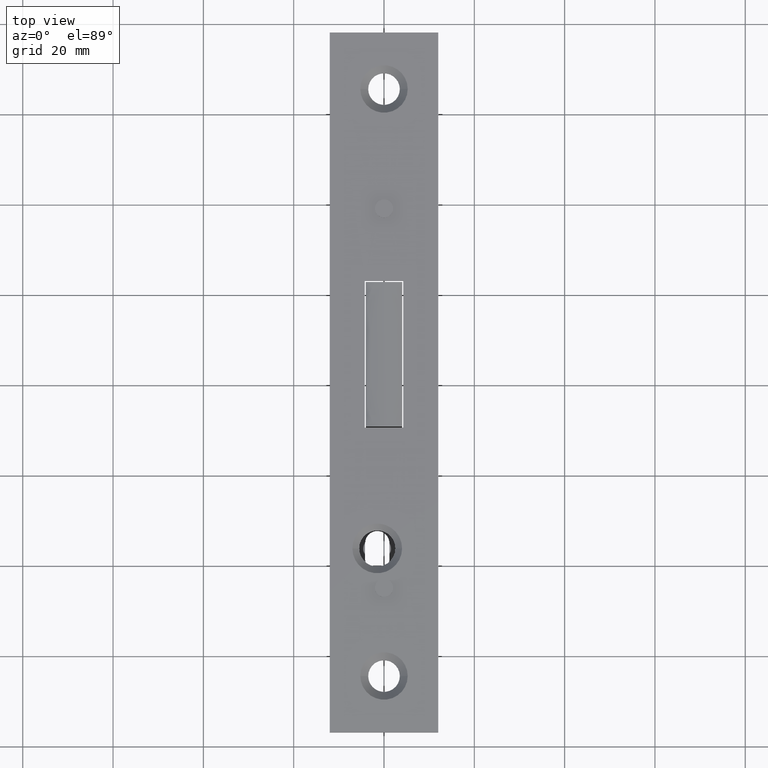
[diagram: clean part render]
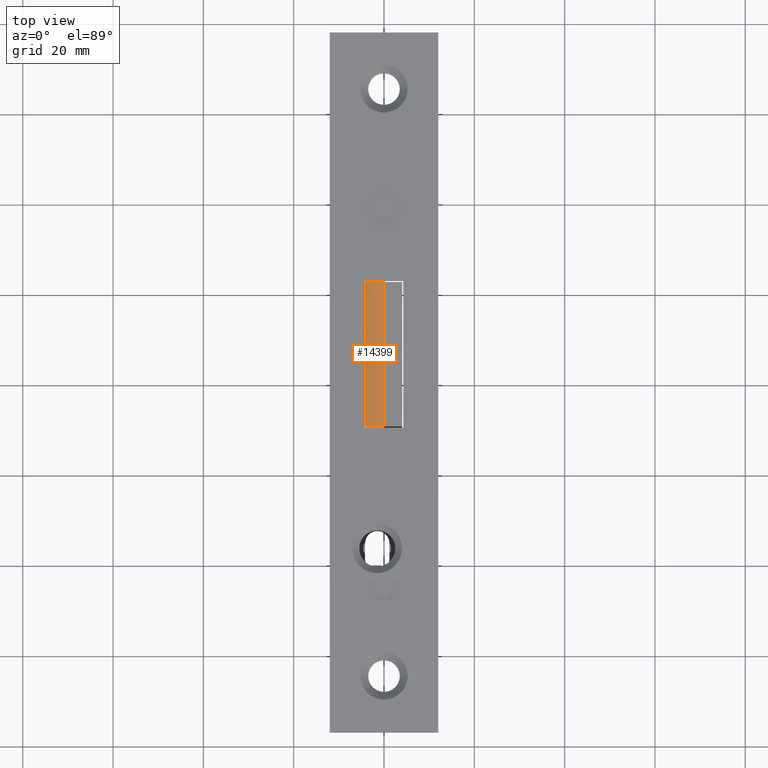
[diagram: same view with one face highlighted and labeled with its STEP entity id]
A machine part, top view. The second image highlights one B-rep face of the part: STEP entity #14399.
In plain terms, the highlighted face is a freeform B-spline surface patch.
Its self-contained STEP definition (entity closure, byte-faithful):
#373 = EDGE_CURVE ( 'NONE', #1470, #10816, #14894, .T. ) ;
#388 = CARTESIAN_POINT ( 'NONE',  ( -3.805268025144322497, -9.750000000000000000, 2.154113633260120064 ) ) ;
#578 = CARTESIAN_POINT ( 'NONE',  ( -3.936414049026728090, -9.750000000000000000, 2.103017513626503465 ) ) ;
#961 = CARTESIAN_POINT ( 'NONE',  ( -3.815235143575141930, 22.25000000000000711, 2.150212360375046927 ) ) ;
#1088 = CARTESIAN_POINT ( 'NONE',  ( -3.064886521503669137, 22.25000000000000355, 2.321289112144453881 ) ) ;
#1226 = CARTESIAN_POINT ( 'NONE',  ( -3.102910258523240650, 22.25000000000000000, 2.315548553909240415 ) ) ;
#1285 = CARTESIAN_POINT ( 'NONE',  ( -2.085934564569480454, 22.25000000000000355, 2.426636975059279333 ) ) ;
#1355 = CARTESIAN_POINT ( 'NONE',  ( -1.040834085586084257E-14, -9.750000000000001776, 2.499999999999998668 ) ) ;
#1470 = VERTEX_POINT ( 'NONE', #12046 ) ;
#1524 = CARTESIAN_POINT ( 'NONE',  ( -3.055638055408452569, -9.750000000000003553, 2.322663528806157895 ) ) ;
#1781 = B_SPLINE_CURVE_WITH_KNOTS ( 'NONE', 3,
 ( #16919, #10034, #5679, #11328 ),
 .UNSPECIFIED., .F., .F.,
 ( 4, 4 ),
 ( 0.000000000000000000, 1.000000000000000000 ),
 .UNSPECIFIED. ) ;
#1782 = CARTESIAN_POINT ( 'NONE',  ( -4.000000000000015099, 12.11666666666666003, 1.999999999999998668 ) ) ;
#1883 = CARTESIAN_POINT ( 'NONE',  ( -3.779538273247455393, -9.750000000000000000, 2.163754766783140493 ) ) ;
#1909 = CARTESIAN_POINT ( 'NONE',  ( -4.000000000000015099, -11.35000000000000320, 1.999999999999998668 ) ) ;
#2028 = CARTESIAN_POINT ( 'NONE',  ( -4.000000000000015099, 0.3833333333333379667, 1.999999999999998668 ) ) ;
#2139 =( BOUNDED_SURFACE ( )  B_SPLINE_SURFACE ( 2, 3, ( 
 ( #1909, #2028, #1782, #11690 ),
 ( #13238, #17387, #13039, #3366 ),
 ( #15990, #4637, #4819, #10338 ) ),
 .UNSPECIFIED., .F., .F., .T. ) 
 B_SPLINE_SURFACE_WITH_KNOTS ( ( 3, 3 ),
 ( 4, 4 ),
 ( 0.000000000000000000, 1.000000000000000000 ),
 ( -0.01135000000000000245, 0.02384999999999999967 ),
 .UNSPECIFIED. ) 
 GEOMETRIC_REPRESENTATION_ITEM ( )  RATIONAL_B_SPLINE_SURFACE ( (
 ( 1.000000000000000000, 1.000000000000000000, 1.000000000000000000, 1.000000000000000000),
 ( 0.7071067811865475727, 0.7071067811865475727, 0.7071067811865475727, 0.7071067811865475727),
 ( 1.000000000000000000, 1.000000000000000000, 1.000000000000000000, 1.000000000000000000) ) ) 
 REPRESENTATION_ITEM ( '' )  SURFACE ( )  );
#2382 = CARTESIAN_POINT ( 'NONE',  ( -4.000000000000015099, -9.750000000000001776, 1.999999999999998668 ) ) ;
#2567 = CARTESIAN_POINT ( 'NONE',  ( -2.055785642861360341, 22.25000000000000711, 2.428911811076549743 ) ) ;
#2929 = CARTESIAN_POINT ( 'NONE',  ( -2.010004234184923799, -9.750000000000003553, 2.432293316964329488 ) ) ;
#3364 = EDGE_CURVE ( 'NONE', #6618, #7219, #9241, .T. ) ;
#3366 = CARTESIAN_POINT ( 'NONE',  ( -4.000000000000015099, 23.85000000000000497, 2.499999999999998668 ) ) ;
#3819 = CARTESIAN_POINT ( 'NONE',  ( -1.040834085586084257E-14, 22.25000000000000000, 2.499999999999998668 ) ) ;
#3900 = CARTESIAN_POINT ( 'NONE',  ( -2.915411741200402584, 22.25000000000000000, 2.343498618526886457 ) ) ;
#3946 = ORIENTED_EDGE ( 'NONE', *, *, #373, .F. ) ;
#4028 = CARTESIAN_POINT ( 'NONE',  ( -1.414097314729632071, 22.25000000000000000, 2.476604814145217492 ) ) ;
#4372 = CARTESIAN_POINT ( 'NONE',  ( -3.547014129790579950, -9.750000000000003553, 2.231122433008331463 ) ) ;
#4545 = CARTESIAN_POINT ( 'NONE',  ( -1.975407552365148200, -9.750000000000003553, 2.434794408181292891 ) ) ;
#4637 = CARTESIAN_POINT ( 'NONE',  ( -1.474514954580286030E-14, 0.3833333333333379667, 2.499999999999998668 ) ) ;
#4750 = CARTESIAN_POINT ( 'NONE',  ( -3.905641309316480125, 22.25000000000000355, 2.109392735931169938 ) ) ;
#4819 = CARTESIAN_POINT ( 'NONE',  ( -1.474514954580286030E-14, 12.11666666666666003, 2.499999999999998668 ) ) ;
#4848 = FACE_OUTER_BOUND ( 'NONE', #12528, .T. ) ;
#4863 = CARTESIAN_POINT ( 'NONE',  ( -3.680167809476497354, -9.750000000000003553, 2.196718273185239489 ) ) ;
#5058 = ORIENTED_EDGE ( 'NONE', *, *, #10457, .T. ) ;
#5301 = CARTESIAN_POINT ( 'NONE',  ( -2.127858319363077566, 22.25000000000000000, 2.423410820697563750 ) ) ;
#5679 = CARTESIAN_POINT ( 'NONE',  ( -4.000000000000015099, 11.58333333333333748, 1.999999999999998668 ) ) ;
#5719 = CARTESIAN_POINT ( 'NONE',  ( -1.905951261702835353, -9.750000000000001776, 2.439676538236804415 ) ) ;
#5727 = CARTESIAN_POINT ( 'NONE',  ( -1.474514954580286030E-14, 11.58333333333332860, 2.499999999999998668 ) ) ;
#5779 = CARTESIAN_POINT ( 'NONE',  ( -2.510699081439635272, -9.750000000000003553, 2.391058909503678276 ) ) ;
#5890 = CARTESIAN_POINT ( 'NONE',  ( -0.8967534092441662441, -9.750000000000000000, 2.491219026035984552 ) ) ;
#5951 = CARTESIAN_POINT ( 'NONE',  ( -2.931938791052440152, -9.750000000000001776, 2.340261369920879631 ) ) ;
#6618 = VERTEX_POINT ( 'NONE', #8720 ) ;
#6652 = CARTESIAN_POINT ( 'NONE',  ( -3.566327799999990944, 22.25000000000000000, 2.226432043467901689 ) ) ;
#6714 = CARTESIAN_POINT ( 'NONE',  ( -2.067859567961302325, 22.25000000000000355, 2.428003963254727005 ) ) ;
#6776 = CARTESIAN_POINT ( 'NONE',  ( -3.072600407539296086, 22.25000000000000355, 2.320136465398820569 ) ) ;
#6837 = CARTESIAN_POINT ( 'NONE',  ( -2.679617665572388674, 22.25000000000000000, 2.373132526173304502 ) ) ;
#7130 = CARTESIAN_POINT ( 'NONE',  ( -3.533735632021147488, -9.750000000000003553, 2.234296663986737652 ) ) ;
#7182 = CARTESIAN_POINT ( 'NONE',  ( -3.558447725039629805, -9.750000000000001776, 2.228363752692272381 ) ) ;
#7219 = VERTEX_POINT ( 'NONE', #3819 ) ;
#7318 = CARTESIAN_POINT ( 'NONE',  ( -2.796816669906454056, -9.750000000000003553, 2.357982222329051414 ) ) ;
#7376 = CARTESIAN_POINT ( 'NONE',  ( -3.043541394457021099, -9.750000000000001776, 2.324443860045652954 ) ) ;
#7435 = CARTESIAN_POINT ( 'NONE',  ( -3.975908419399961868, 22.24999999999999289, 2.064930943048547629 ) ) ;
#8001 = CARTESIAN_POINT ( 'NONE',  ( -3.144666971412400702, 22.25000000000000000, 2.309071630293920485 ) ) ;
#8598 = CARTESIAN_POINT ( 'NONE',  ( -3.159877659180551301, -9.750000000000001776, 2.307170570181147351 ) ) ;
#8706 = CARTESIAN_POINT ( 'NONE',  ( -1.765986972287173939, -9.750000000000001776, 2.448960588834173002 ) ) ;
#8720 = CARTESIAN_POINT ( 'NONE',  ( -4.000000000000015099, 22.25000000000000000, 1.999999999999998668 ) ) ;
#8837 = CARTESIAN_POINT ( 'NONE',  ( -3.800923253462778817, -9.750000000000001776, 2.155772169430225649 ) ) ;
#8843 = CARTESIAN_POINT ( 'NONE',  ( -3.823014716477242558, 22.25000000000000000, 2.147087685976313054 ) ) ;
#9241 = B_SPLINE_CURVE_WITH_KNOTS ( 'NONE', 3,
 ( #17684, #17743, #7435, #4750, #10697, #17250, #8843, #961, #12170, #15919, #15071, #13595, #13778, #9476, #16455, #6652, #17984, #10951, #16394, #8001, #1226, #17867, #6776, #1088, #3900, #6837, #17810, #13717, #5301, #1285, #6714, #2567, #17927, #4028, #12359, #13843 ),
 .UNSPECIFIED., .F., .F.,
 ( 4, 1, 1, 1, 1, 2, 2, 1, 1, 1, 2, 2, 1, 1, 1, 1, 2, 2, 1, 1, 1, 1, 1, 2, 2, 4 ),
 ( 0.000000000000000000, 0.03125000000000057593, 0.04687500000000112410, 0.05468750000000139472, 0.05859375000000138778, 0.06054687500000132533, 0.06250000000000126288, 0.09375000000000088818, 0.1093750000000005135, 0.1171875000000003747, 0.1210937500000003331, 0.1250000000000002776, 0.1875000000000009437, 0.2187500000000010825, 0.2343750000000011657, 0.2421875000000012212, 0.2460937500000013600, 0.2500000000000014988, 0.3750000000000083822, 0.4375000000000118794, 0.4687500000000138223, 0.4843750000000149325, 0.4921875000000153211, 0.4960937500000154321, 0.5000000000000154321, 1.000000000000000000 ),
 .UNSPECIFIED. ) ;
#9476 = CARTESIAN_POINT ( 'NONE',  ( -3.586204991283282961, 22.25000000000000355, 2.221473635716480821 ) ) ;
#9902 = CARTESIAN_POINT ( 'NONE',  ( -0.3663938571635463881, -9.750000000000000000, 2.499999999999998224 ) ) ;
#9959 = CARTESIAN_POINT ( 'NONE',  ( -1.040834085586084257E-14, -9.750000000000001776, 2.499999999999998668 ) ) ;
#10016 = CARTESIAN_POINT ( 'NONE',  ( -3.502165305231602854, -9.750000000000001776, 2.241652690539723380 ) ) ;
#10034 = CARTESIAN_POINT ( 'NONE',  ( -4.000000000000015099, 0.9166666666666662966, 1.999999999999998668 ) ) ;
#10338 = CARTESIAN_POINT ( 'NONE',  ( -1.474514954580286030E-14, 23.85000000000000142, 2.499999999999998668 ) ) ;
#10457 = EDGE_CURVE ( 'NONE', #1470, #7219, #17030, .T. ) ;
#10697 = CARTESIAN_POINT ( 'NONE',  ( -3.859967687762218880, 22.25000000000000000, 2.131428263836027348 ) ) ;
#10816 = VERTEX_POINT ( 'NONE', #2382 ) ;
#10951 = CARTESIAN_POINT ( 'NONE',  ( -3.378479427270324020, 22.25000000000000000, 2.268879737863163104 ) ) ;
#11310 = CARTESIAN_POINT ( 'NONE',  ( -3.296302715323420784, -9.750000000000003553, 2.284374502752001934 ) ) ;
#11328 = CARTESIAN_POINT ( 'NONE',  ( -4.000000000000015099, 22.25000000000000000, 1.999999999999998668 ) ) ;
#11451 = EDGE_CURVE ( 'NONE', #10816, #6618, #1781, .T. ) ;
#11602 = CARTESIAN_POINT ( 'NONE',  ( -4.000000000000015987, -9.750000000000001776, 2.052162424960338516 ) ) ;
#11690 = CARTESIAN_POINT ( 'NONE',  ( -4.000000000000015099, 23.85000000000000142, 1.999999999999998668 ) ) ;
#12046 = CARTESIAN_POINT ( 'NONE',  ( -1.040834085586084257E-14, -9.750000000000001776, 2.499999999999998668 ) ) ;
#12170 = CARTESIAN_POINT ( 'NONE',  ( -3.809313005715485367, 22.25000000000000000, 2.152538769282632103 ) ) ;
#12300 = ORIENTED_EDGE ( 'NONE', *, *, #3364, .F. ) ;
#12359 = CARTESIAN_POINT ( 'NONE',  ( -0.7328720391564046421, 22.25000000000000355, 2.499999999999999112 ) ) ;
#12528 = EDGE_LOOP ( 'NONE', ( #12300, #12543, #3946, #5058 ) ) ;
#12543 = ORIENTED_EDGE ( 'NONE', *, *, #11451, .F. ) ;
#12715 = CARTESIAN_POINT ( 'NONE',  ( -3.436675990342382914, -9.750000000000001776, 2.256162694059176133 ) ) ;
#12779 = CARTESIAN_POINT ( 'NONE',  ( -2.034662938349205863, -9.749999999999998224, 2.430482526923247288 ) ) ;
#13039 = CARTESIAN_POINT ( 'NONE',  ( -4.000000000000015099, 12.11666666666666714, 2.499999999999998668 ) ) ;
#13238 = CARTESIAN_POINT ( 'NONE',  ( -4.000000000000015099, -11.35000000000000142, 2.499999999999998668 ) ) ;
#13595 = CARTESIAN_POINT ( 'NONE',  ( -3.644236043277741643, 22.25000000000000000, 2.206328908920959897 ) ) ;
#13717 = CARTESIAN_POINT ( 'NONE',  ( -2.210700879781671624, 22.25000000000000355, 2.416812451018128804 ) ) ;
#13778 = CARTESIAN_POINT ( 'NONE',  ( -3.604015212690409697, 22.25000000000000000, 2.216947801669891138 ) ) ;
#13843 = CARTESIAN_POINT ( 'NONE',  ( -1.040834085586084257E-14, 22.25000000000000000, 2.499999999999998668 ) ) ;
#13919 = CARTESIAN_POINT ( 'NONE',  ( -1.040834085586084257E-14, 22.25000000000000000, 2.499999999999998668 ) ) ;
#14193 = CARTESIAN_POINT ( 'NONE',  ( -2.238243983596909015, -9.750000000000000000, 2.415356039696134882 ) ) ;
#14257 = CARTESIAN_POINT ( 'NONE',  ( -2.024803212783818029, -9.749999999999998224, 2.431208557973657314 ) ) ;
#14314 = CARTESIAN_POINT ( 'NONE',  ( -1.481851561091702463, -9.750000000000001776, 2.465607851974280784 ) ) ;
#14399 = ADVANCED_FACE ( 'NONE', ( #4848 ), #2139, .T. ) ;
#14894 = B_SPLINE_CURVE_WITH_KNOTS ( 'NONE', 3,
 ( #9959, #9902, #5890, #14314, #8706, #5719, #4545, #2929, #14257, #12779, #17016, #14193, #5779, #7318, #5951, #17128, #15789, #7376, #17186, #1524, #8598, #11310, #12715, #10016, #7130, #4372, #15611, #7182, #17300, #4863, #16092, #1883, #17366, #8837, #17487, #388, #578, #11602, #15848 ),
 .UNSPECIFIED., .F., .F.,
 ( 4, 1, 1, 1, 1, 1, 1, 2, 2, 1, 1, 1, 1, 1, 2, 2, 1, 1, 1, 1, 2, 2, 1, 1, 1, 1, 2, 2, 4 ),
 ( 0.000000000000000000, 0.2500000000000004996, 0.3750000000000007772, 0.4375000000000007772, 0.4687500000000008882, 0.4843750000000009437, 0.4921875000000011657, 0.4960937500000010547, 0.5000000000000008882, 0.6249999999999978906, 0.6874999999999965583, 0.7187499999999958922, 0.7343749999999954481, 0.7421874999999952260, 0.7460937499999948930, 0.7499999999999945599, 0.8124999999999937828, 0.8437499999999932276, 0.8593749999999927836, 0.8671874999999928946, 0.8710937499999928946, 0.8749999999999928946, 0.9062499999999926725, 0.9218749999999928946, 0.9296874999999928946, 0.9335937499999928946, 0.9355468749999930056, 0.9374999999999931166, 1.000000000000000000 ),
 .UNSPECIFIED. ) ;
#15071 = CARTESIAN_POINT ( 'NONE',  ( -3.719332293668558886, 22.25000000000000000, 2.184856670195528761 ) ) ;
#15611 = CARTESIAN_POINT ( 'NONE',  ( -3.555810541129484914, -9.750000000000005329, 2.229001468318286161 ) ) ;
#15789 = CARTESIAN_POINT ( 'NONE',  ( -3.029808087436182795, -9.750000000000001776, 2.326453383005627096 ) ) ;
#15848 = CARTESIAN_POINT ( 'NONE',  ( -4.000000000000015099, -9.750000000000001776, 1.999999999999998668 ) ) ;
#15919 = CARTESIAN_POINT ( 'NONE',  ( -3.774536946945518778, 22.25000000000000711, 2.166049974326478278 ) ) ;
#15990 = CARTESIAN_POINT ( 'NONE',  ( -1.474514954580286030E-14, -11.35000000000000320, 2.499999999999998668 ) ) ;
#16092 = CARTESIAN_POINT ( 'NONE',  ( -3.748124592369284080, -9.750000000000005329, 2.174843434909147000 ) ) ;
#16394 = CARTESIAN_POINT ( 'NONE',  ( -3.225790708408289298, 22.25000000000000000, 2.295927732957734335 ) ) ;
#16455 = CARTESIAN_POINT ( 'NONE',  ( -3.574204238659868249, 22.25000000000000355, 2.224485276194502870 ) ) ;
#16789 = CARTESIAN_POINT ( 'NONE',  ( -1.474514954580286030E-14, 0.9166666666666696273, 2.499999999999998668 ) ) ;
#16919 = CARTESIAN_POINT ( 'NONE',  ( -4.000000000000015099, -9.750000000000001776, 1.999999999999998668 ) ) ;
#17016 = CARTESIAN_POINT ( 'NONE',  ( -2.038459188978370751, -9.750000000000001776, 2.430202088556387530 ) ) ;
#17030 = B_SPLINE_CURVE_WITH_KNOTS ( 'NONE', 3,
 ( #1355, #16789, #5727, #13919 ),
 .UNSPECIFIED., .F., .F.,
 ( 4, 4 ),
 ( 0.000000000000000000, 1.000000000000000000 ),
 .UNSPECIFIED. ) ;
#17128 = CARTESIAN_POINT ( 'NONE',  ( -2.997515683353577653, -9.750000000000003553, 2.331105316511580927 ) ) ;
#17186 = CARTESIAN_POINT ( 'NONE',  ( -3.052673311420057267, -9.750000000000001776, 2.323100658700846921 ) ) ;
#17250 = CARTESIAN_POINT ( 'NONE',  ( -3.834495860356952779, 22.25000000000001421, 2.142397185654345559 ) ) ;
#17300 = CARTESIAN_POINT ( 'NONE',  ( -3.613125845048787088, -9.749999999999998224, 2.214949566606033926 ) ) ;
#17366 = CARTESIAN_POINT ( 'NONE',  ( -3.794603936044490755, -9.750000000000000000, 2.158172620473148839 ) ) ;
#17387 = CARTESIAN_POINT ( 'NONE',  ( -4.000000000000015099, 0.3833333333333293069, 2.499999999999998668 ) ) ;
#17487 = CARTESIAN_POINT ( 'NONE',  ( -3.805105599472968780, -9.750000000000000000, 2.154170068151752826 ) ) ;
#17684 = CARTESIAN_POINT ( 'NONE',  ( -4.000000000000015099, 22.25000000000000000, 1.999999999999998668 ) ) ;
#17743 = CARTESIAN_POINT ( 'NONE',  ( -4.000000000000015987, 22.25000000000001421, 2.026150999881318970 ) ) ;
#17810 = CARTESIAN_POINT ( 'NONE',  ( -2.372366203944451524, 22.25000000000000000, 2.403031467835226032 ) ) ;
#17867 = CARTESIAN_POINT ( 'NONE',  ( -3.084758486344051143, 22.25000000000000000, 2.318304015804495855 ) ) ;
#17927 = CARTESIAN_POINT ( 'NONE',  ( -2.048594408844603976, 22.25000000000000000, 2.429448892656676851 ) ) ;
#17984 = CARTESIAN_POINT ( 'NONE',  ( -3.492969034643943260, 22.25000000000000000, 2.244392541344051306 ) ) ;